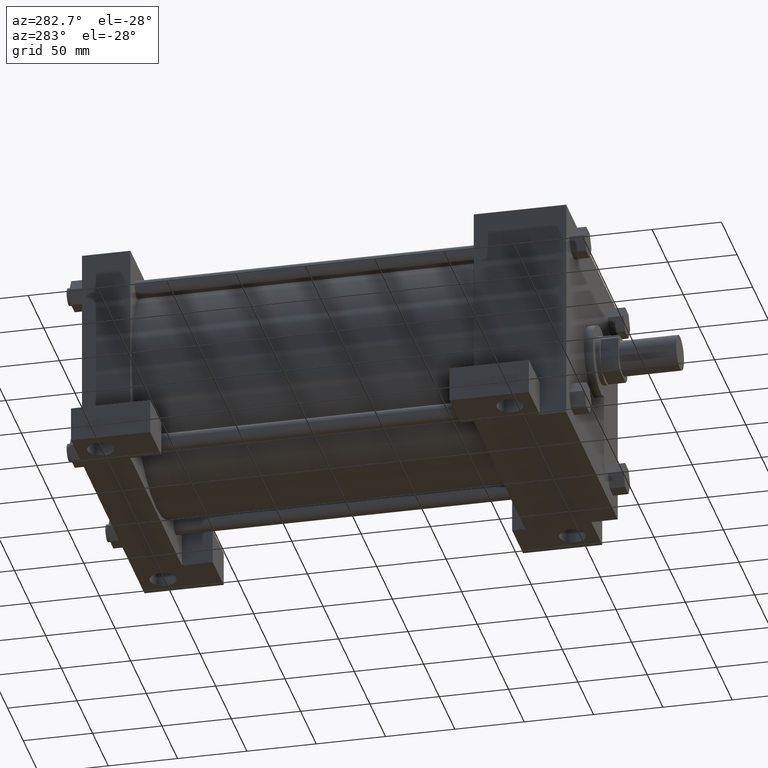
[diagram: clean part render]
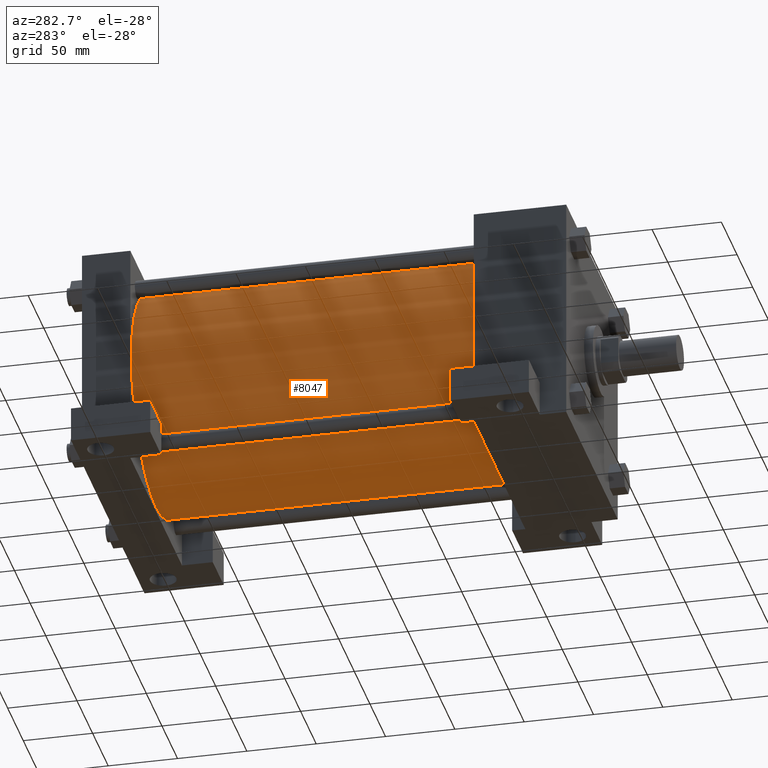
[diagram: same view with one face highlighted and labeled with its STEP entity id]
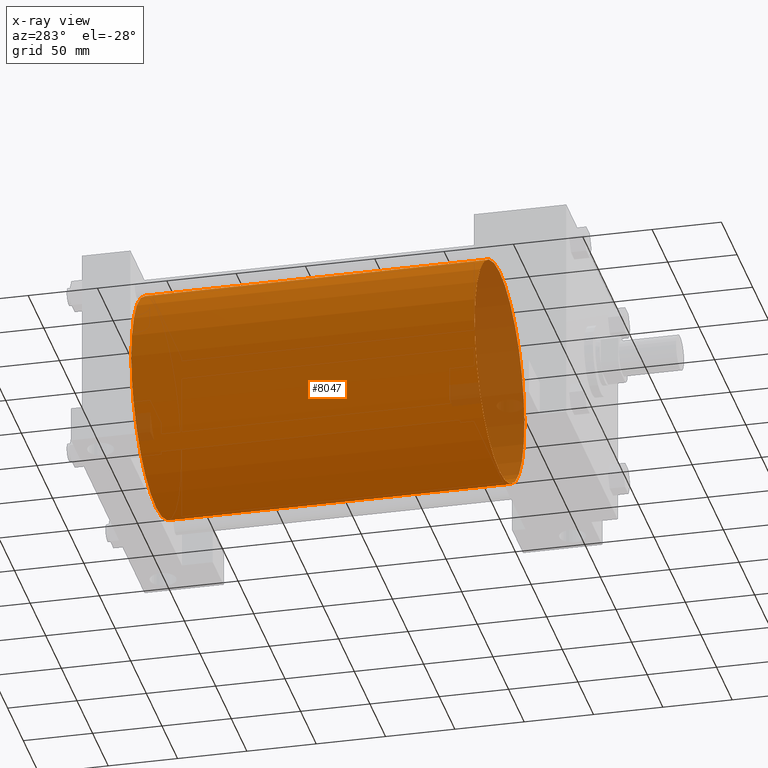
[diagram: x-ray of the same camera — body ghosted, the highlighted face saturated]
A machine part, auxiliary view. The second image highlights one B-rep face of the part: STEP entity #8047.
The next image is the same camera in x-ray: the body ghosted, the highlighted face saturated — about 10% of this face is hidden behind the body in this view.
In plain terms, the highlighted cylindrical surface (bore or boss wall) has radius 79.375 mm, axis along (0, -1, 0).
Its self-contained STEP definition (entity closure, byte-faithful):
#1250=EDGE_CURVE('',#1256,#1256,#1251,.T.);
#1251=CIRCLE('',#1252,7.937500000E+001);
#1252=AXIS2_PLACEMENT_3D('',#1253,#1254,#1255);
#1253=CARTESIAN_POINT('',(0.000000000E+000,8.890000000E+001,0.000000000E+000));
#1254=DIRECTION('',(0.0E+000,1.0E+000,0.0E+000));
#1255=DIRECTION('',(1.0E+000,0.0E+000,0.0E+000));
#1256=VERTEX_POINT('',#1257);
#1257=CARTESIAN_POINT('',(7.937500000E+001,8.890000000E+001,0.000000000E+000));
#2043=FACE_OUTER_BOUND('',#2045,.T.);
#2044=FACE_BOUND('',#2046,.T.);
#2045=EDGE_LOOP('',(#2047));
#2046=EDGE_LOOP('',(#2056));
#2047=ORIENTED_EDGE('',*,*,#2048,.F.);
#2048=EDGE_CURVE('',#2054,#2054,#2049,.T.);
#2049=CIRCLE('',#2050,7.937500000E+001);
#2050=AXIS2_PLACEMENT_3D('',#2051,#2052,#2053);
#2051=CARTESIAN_POINT('',(0.000000000E+000,3.365500000E+002,0.000000000E+000));
#2052=DIRECTION('',(0.0E+000,1.0E+000,0.0E+000));
#2053=DIRECTION('',(1.0E+000,0.0E+000,0.0E+000));
#2054=VERTEX_POINT('',#2055);
#2055=CARTESIAN_POINT('',(7.937500000E+001,3.365500000E+002,0.000000000E+000));
#2056=ORIENTED_EDGE('',*,*,#1250,.T.);
#2057=CYLINDRICAL_SURFACE('',#2058,7.937500000E+001);
#2058=AXIS2_PLACEMENT_3D('',#2059,#2060,#2061);
#2059=CARTESIAN_POINT('',(0.000000000E+000,3.365500000E+002,0.000000000E+000));
#2060=DIRECTION('',(0.0E+000,-1.0E+000,0.0E+000));
#2061=DIRECTION('',(0.0E+000,0.0E+000,-1.0E+000));
#8047=ADVANCED_FACE('',(#2043,#2044),#2057,.T.);